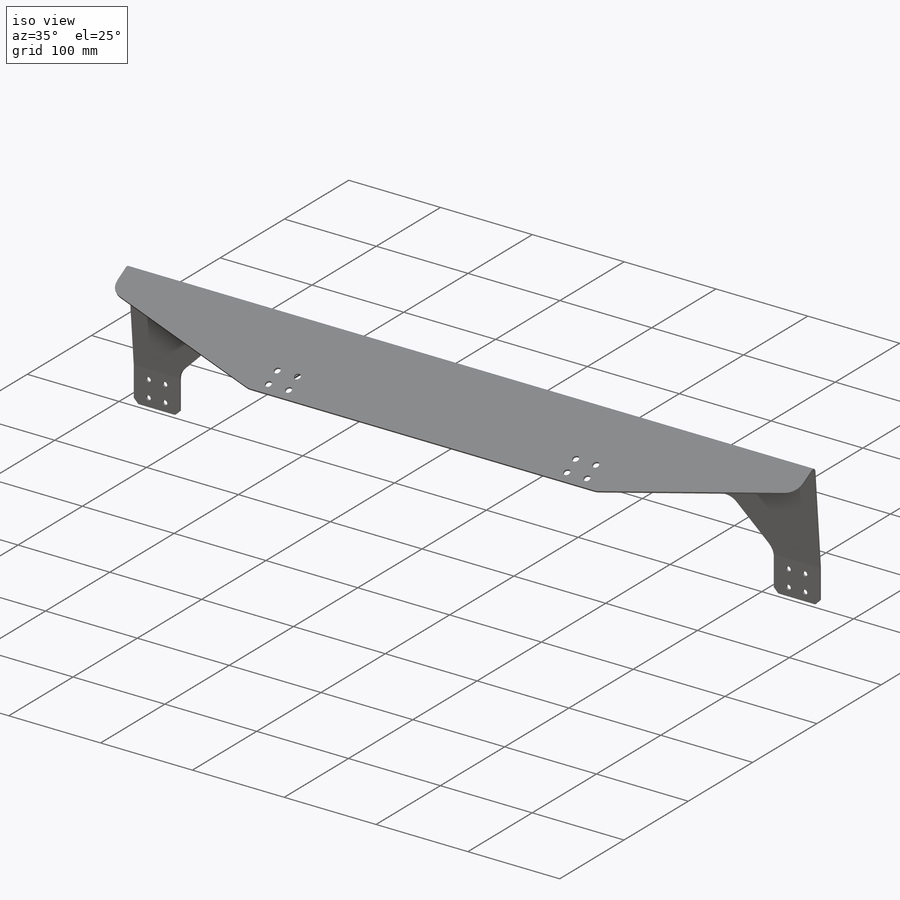
[diagram: iso view]
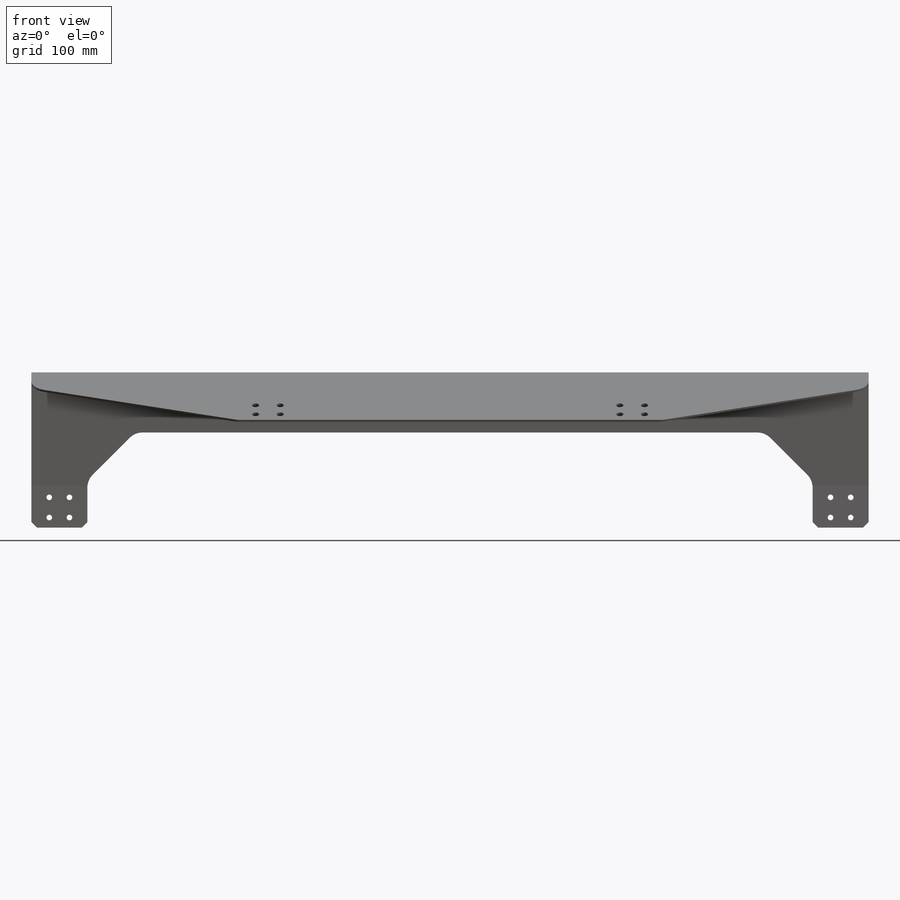
[diagram: front view]
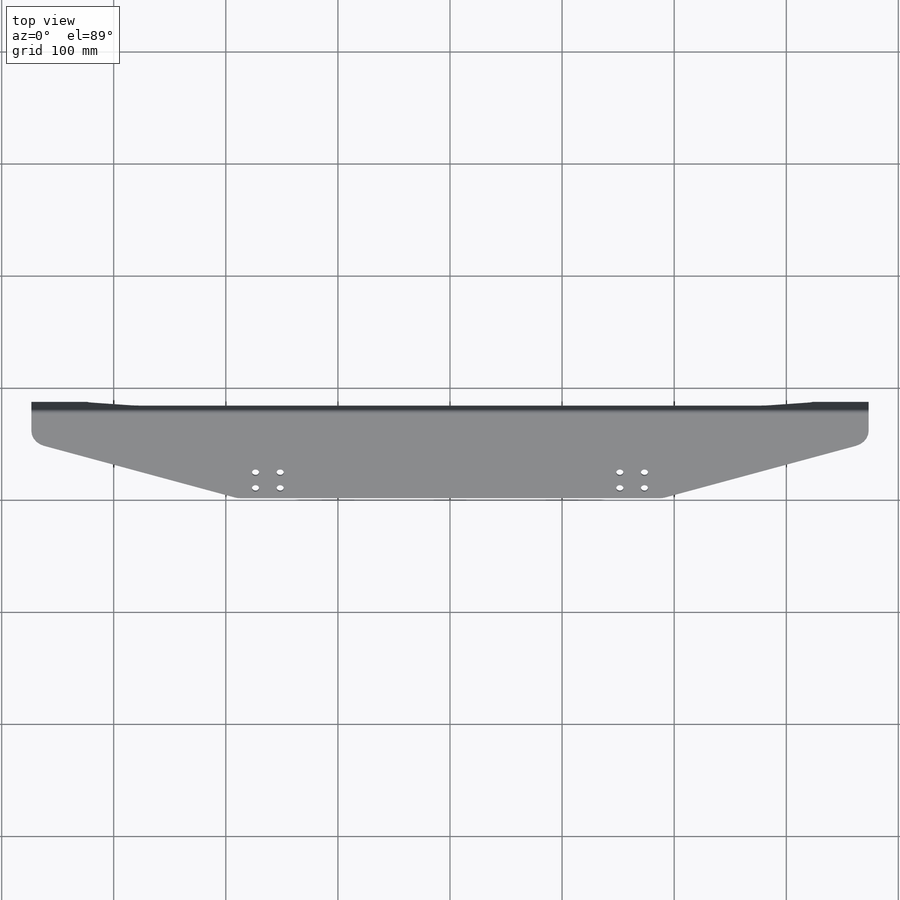
[diagram: top view]
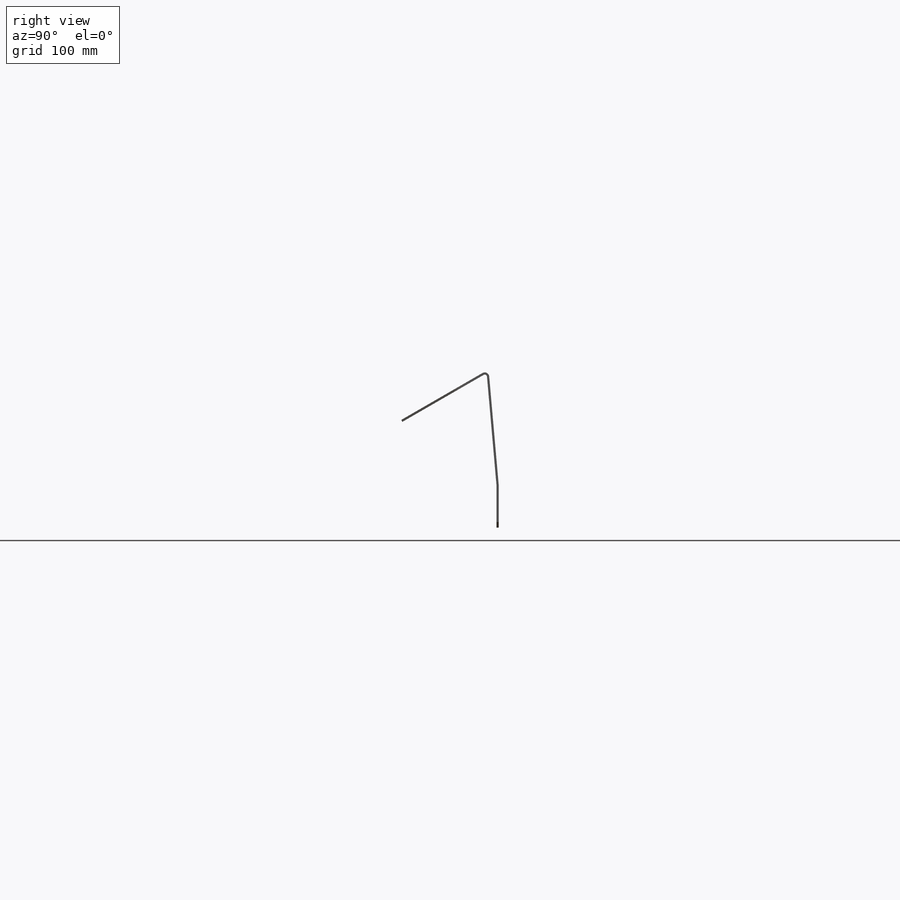
[diagram: right view]
SOLIDWORKS PART (.sldprt)
format: sldprt  version: not decoded by parser v0  size: 482,304 bytes
history: native  units: mm
features: sketch x13, chamfer x5, plane x4, cut_extrude x4, sheet_metal_op x3, material x1 + 8 further entries (+9 scaffold rows collapsed)
feature tree (47):
  scaffold x9  (default folders/planes/origin — collapsed)
  material  "Ст 3 ГОСТ 380-2005"
  plane  "Спереди"
  plane  "Сверху"
  plane  "Слева"
  "Начало координат"
  "PTricksFreeParameters"
  "PTricksEqu"
  "PTricksFreeParameters"
  sketch  "Эскиз1"  dims[c1.D1=16.0mm c1.D2=74.5mm c1.D3=747.0mm c1.D4=375.0mm c1.D5=187.5mm c2.D5=15.0deg]
  sketch  "Эскиз2"  dims[D1=288.5mm]
  sketch  "Трехмерный эскиз1"  dims[D1=91.0mm D2=36.0mm]
  sketch  "Эскиз20"  dims[c1.D1=4.0mm c1.D4=4.0mm c1.D2=~51.708824mm c2.D2=60.0deg c2.D3=288.5mm c3.D3=5.0deg c3.D5=12.5mm c3.D6=~25.844555mm c3.D7=138.5mm c3.D8=~37.344555mm c3.D9=150.0mm]
  plane  "Плоскость1"
  sheet_metal_op  "Листовой металл1"  Толщина=2mm
  sheet_metal_op  "Базовая кромка2"
  sheet_metal_op  "Основание2"
  sketch  "Трехмерный эскиз2"  dims[c1.D1=25.0mm c1.D2=25.0mm c1.D3=~263.306248mm c1.D4=~255.834785mm c1.D5=~177.951029mm c2.D5=~8.498781deg c2.D6=~259.570517mm c2.D7=~2.284042mm c2.D8=~257.261116mm c2.D9=~257.261116mm c3.D8=~257.261116mm c3.D9=50.0mm c3.D10=~243.796806mm]
  sketch  "Эскиз4"  dims[c1.D1=16.0mm c1.D3=8.0mm c2.D1=16.0mm c2.D2=50.0mm]
  cut_extrude  "Вытянуть2"  [1 undecoded]
  "Преобразование эскиза2"
  sketch  "Эскиз22"  dims[c1.D3=16.0mm c1.D1=747.0mm c2.D1=45.0deg c2.D2=50.0mm c2.D3=36.0mm c2.D4=36.0mm c2.D5=50.0mm]
  cut_extrude  "Вытянуть3"  [1 undecoded]
  sketch  "Эскиз27"  dims[c1.D1=50.0mm c2.D1=2.0mm c2.D4=60.0deg c2.D5=3.0 c2.D8=1.0mm c2.D9=1.0mm c3.D1=2.0mm c3.D2=500.0mm c3.D3=0.0mm c3.D6=10.0mm c3.D7=250.0mm]
  sketch  "Эскиз28"  dims[D1=60.0mm]
  "Изгиб2"
  "Изгиб3"
  sketch  "Трехмерный эскиз4"  dims[c1.D1=~244.731604mm c1.D2=50.0mm c1.D3=50.0mm c2.D3=~8.498781deg c2.D4=~252.203067mm c2.D5=252.0mm]
  chamfer  "Фаска1"  Distance=5mm Angle=45deg
  sketch  "Эскиз29"  dims[c1.D6=6.5mm c1.D1=50.0mm c1.D2=200.0mm c1.D3=18.0mm c1.D4=16.0mm c1.D5=22.0mm c1.D7=36.0mm c2.D2=236.0mm]
  cut_extrude  "Вытянуть4"  [1 undecoded]
  sketch  "Эскиз30"  dims[c1.D7=5.0mm c1.D1=~29.975928mm c2.D1=90.0deg c3.D1=11.0mm c3.D2=11.0mm c3.D3=18.0mm c3.D4=9.0mm c3.D5=18.0mm c3.D6=~10.344555mm]
  cut_extrude  "Вытянуть5"  [1 undecoded]
  "Развертка2"
  sketch  "Сгиб-Линии2"
  chamfer  "Плоское состояние-<Основание2>1"  [1 undecoded]
  chamfer  "Плоское состояние-<EdgeBend5>1"  [1 undecoded]
  chamfer  "Плоское состояние-<Изгиб2>1"  [1 undecoded]
  chamfer  "Плоское состояние-<Изгиб3>1"  [1 undecoded]
decode coverage: 14 of 25 modeling features carry decoded parameters; 8 rows unclassified (native names shown)
note: ~ marks probable driven/reference dimensions
note: 8 parameter values undecoded
summary: no parameter record found for 8 features
note: suppression state not decoded; provenance and decode notes live in map.json
